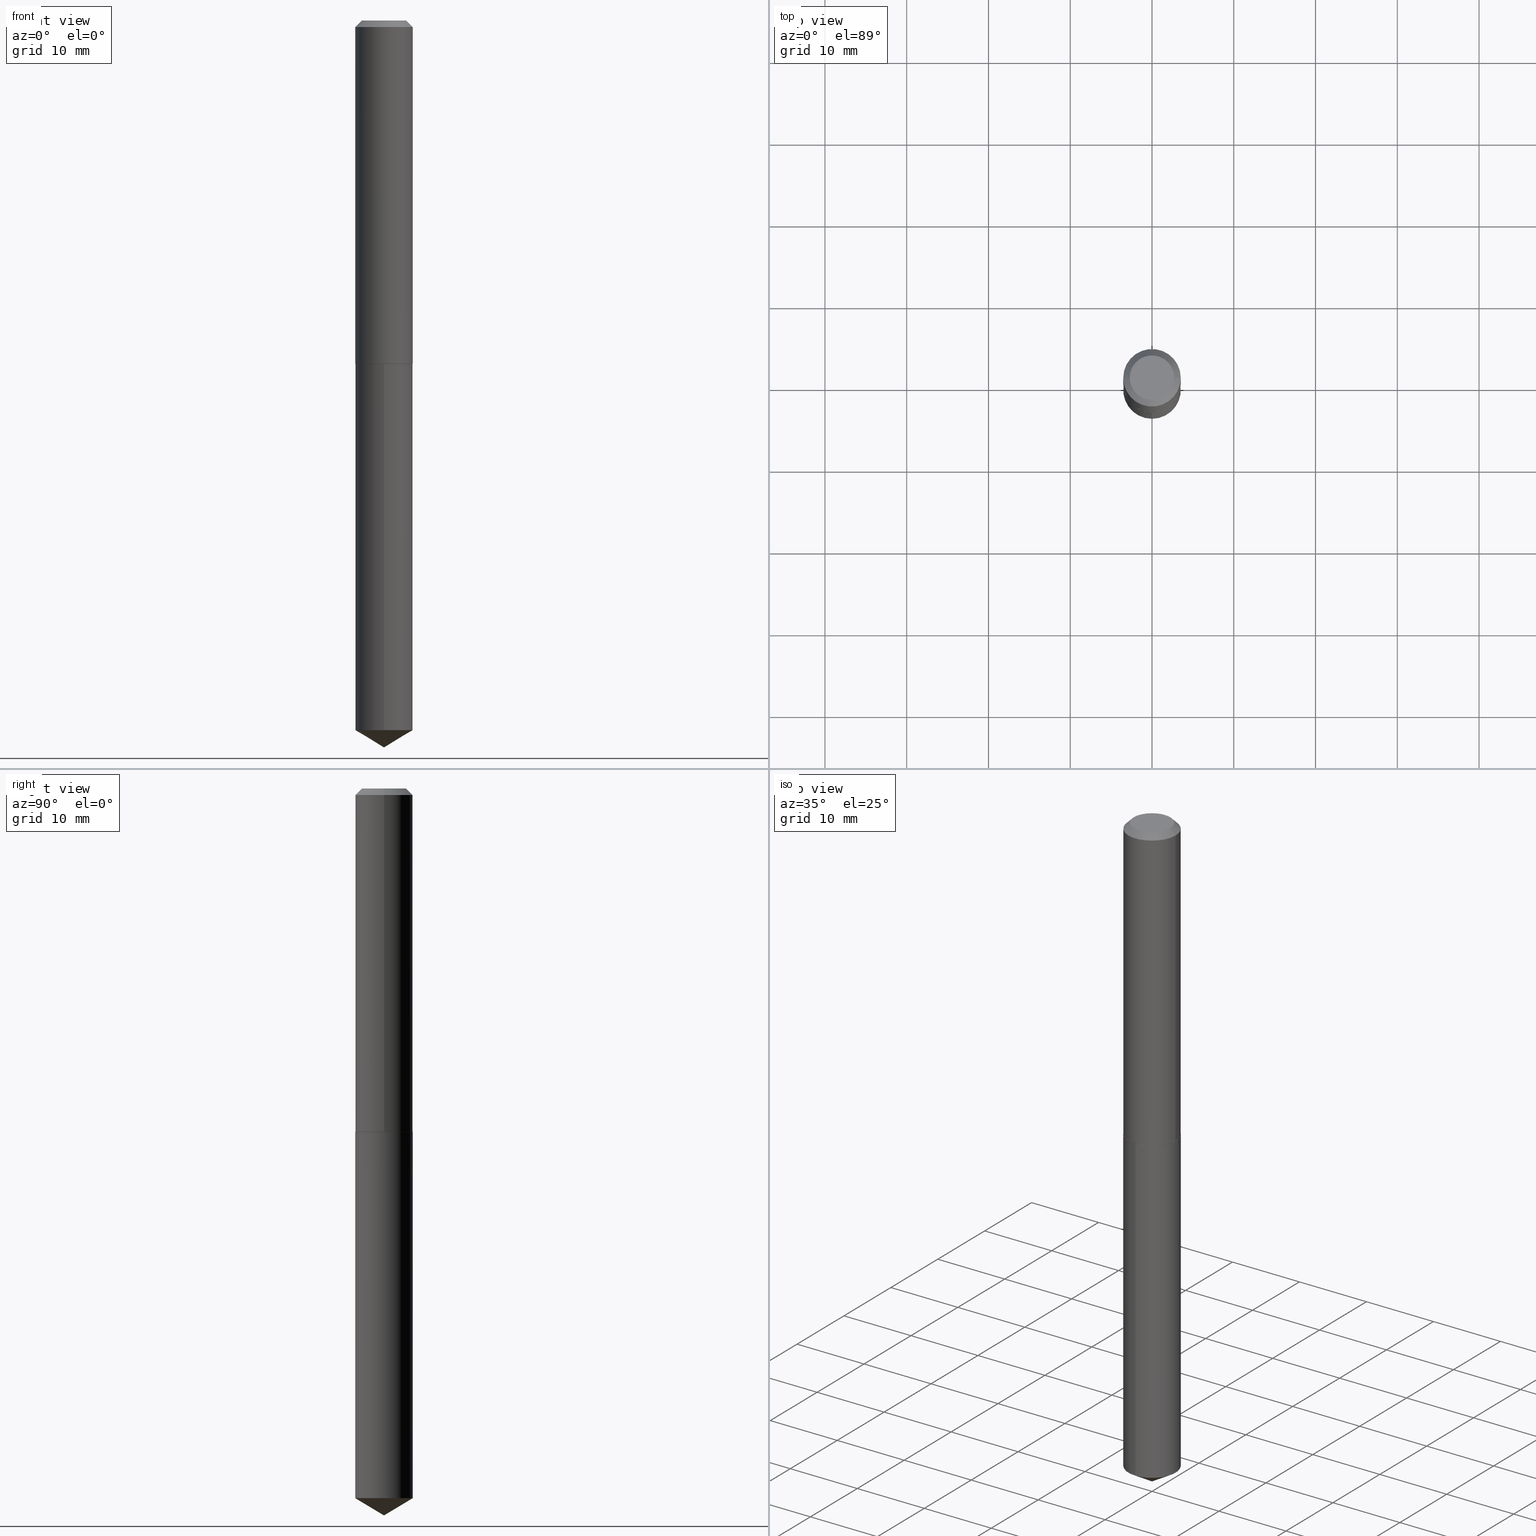
[diagram: canonical four-view strip — front | top / right | iso, engineering-drawing reading convention]
A machine part, canonical four-view strip (front | top / right | iso — engineering-drawing reading convention). The complete STEP part file that produces these views, byte-faithful:
ISO-10303-21;
HEADER;
FILE_DESCRIPTION (( 'STEP AP203' ),
    '1' );
FILE_NAME ('51210.STEP',
    '2024-04-22T18:37:37',
    ( '' ),
    ( '' ),
    'SwSTEP 2.0',
    'SolidWorks 2023',
    '' );
FILE_SCHEMA (( 'CONFIG_CONTROL_DESIGN' ));
ENDSEC;

DATA;
#1 = DIRECTION ( 'NONE',  ( -2.445468806185136597E-29, 3.491481338843145583E-15, 1.000000000000000000 ) ) ;
#2 = LENGTH_MEASURE_WITH_UNIT ( LENGTH_MEASURE( 0.02539999999999999897 ), #103 );
#3 = APPROVAL_DATE_TIME ( #68, #172 ) ;
#4 = ORIENTED_EDGE ( 'NONE', *, *, #318, .T. ) ;
#5 = DIRECTION ( 'NONE',  ( -6.982962677686265922E-15, -1.000000000000000000, 3.944906850056698013E-15 ) ) ;
#6 = EDGE_LOOP ( 'NONE', ( #372, #192, #317, #111 ) ) ;
#7 = CONICAL_SURFACE ( 'NONE', #164, 65.52281426576925583, 1.029744258676660085 ) ;
#8 = CARTESIAN_POINT ( 'NONE',  ( 4.039914467817845918E-29, -5.767927171768876561E-15, -1.652000000000000135 ) ) ;
#9 = ORIENTED_EDGE ( 'NONE', *, *, #187, .T. ) ;
#10 = EDGE_LOOP ( 'NONE', ( #229, #177, #386 ) ) ;
#11 = CONICAL_SURFACE ( 'NONE', #301, 0.1385000000000000120, 0.7853981633974449483 ) ;
#12 = DIRECTION ( 'NONE',  ( -6.982962677686265922E-15, -1.000000000000000000, 3.944906850056697224E-15 ) ) ;
#13 = DIRECTION ( 'NONE',  ( -2.445468806185136597E-29, 3.491481338843145583E-15, 1.000000000000000000 ) ) ;
#14 = ORIENTED_EDGE ( 'NONE', *, *, #287, .T. ) ;
#15 = DIRECTION ( 'NONE',  ( 1.000000000000000000, 0.000000000000000000, 0.000000000000000000 ) ) ;
#16 = CARTESIAN_POINT ( 'NONE',  ( -8.772011453141554688E-28, 1.252383416452471180E-13, 35.87007874015748143 ) ) ;
#17 = DESIGN_CONTEXT ( 'detailed design', #216, 'design' ) ;
#18 = LINE ( 'NONE', #178, #219 ) ;
#19 = ORIENTED_EDGE ( 'NONE', *, *, #311, .T. ) ;
#20 = FACE_OUTER_BOUND ( 'NONE', #6, .T. ) ;
#21 = EDGE_CURVE ( 'NONE', #305, #132, #368, .T. ) ;
#22 = ADVANCED_BREP_SHAPE_REPRESENTATION ( '51210', ( #328, #335, #251 ), #123 ) ;
#23 = LINE ( 'NONE', #388, #85 ) ;
#24 = CC_DESIGN_PERSON_AND_ORGANIZATION_ASSIGNMENT ( #347, #252, ( #116 ) ) ;
#25 = FACE_OUTER_BOUND ( 'NONE', #382, .T. ) ;
#26 = VECTOR ( 'NONE', #267, 39.37007874015748143 ) ;
#27 = UNCERTAINTY_MEASURE_WITH_UNIT (LENGTH_MEASURE( 1.000000000000000082E-05 ), #193, 'distance_accuracy_value', 'NONE');
#28 = LOCAL_TIME ( 14, 37, 37.00000000000000000, #293 ) ;
#29 = ADVANCED_FACE ( 'NONE', ( #74 ), #349, .F. ) ;
#30 = LINE ( 'NONE', #58, #214 ) ;
#31 = CONICAL_SURFACE ( 'NONE', #189, 0.1385000000000002063, 0.7853981633973459164 ) ;
#32 = AXIS2_PLACEMENT_3D ( 'NONE', #256, #140, #43 ) ;
#33 = DIRECTION ( 'NONE',  ( -0.7071067811864750752, 7.493145998870092258E-15, 0.7071067811866199593 ) ) ;
#34 = APPROVAL_DATE_TIME ( #54, #233 ) ;
#35 = ORIENTED_EDGE ( 'NONE', *, *, #62, .T. ) ;
#36 = DIRECTION ( 'NONE',  ( -2.445468806185136597E-29, 3.491481338843145583E-15, 1.000000000000000000 ) ) ;
#37 = APPROVAL_STATUS ( 'not_yet_approved' ) ;
#38 = ORIENTED_EDGE ( 'NONE', *, *, #381, .F. ) ;
#39 = ORIENTED_EDGE ( 'NONE', *, *, #139, .T. ) ;
#40 = VERTEX_POINT ( 'NONE', #106 ) ;
#41 = CARTESIAN_POINT ( 'NONE',  ( -9.671403308594642649E-16, -0.1385000000000119469, -3.416780804264683002 ) ) ;
#42 = CIRCLE ( 'NONE', #129, 0.1384999999999999842 ) ;
#43 = DIRECTION ( 'NONE',  ( 1.000000000000000000, -6.982962677686267499E-15, 0.000000000000000000 ) ) ;
#44 = ORIENTED_EDGE ( 'NONE', *, *, #303, .T. ) ;
#45 = MECHANICAL_CONTEXT ( 'NONE', #199, 'mechanical' ) ;
#46 = FACE_OUTER_BOUND ( 'NONE', #10, .T. ) ;
#47 = AXIS2_PLACEMENT_3D ( 'NONE', #16, #379, #82 ) ;
#48 = DIRECTION ( 'NONE',  ( -6.982962677686265922E-15, -1.000000000000000000, 3.944906850056697224E-15 ) ) ;
#49 = AXIS2_PLACEMENT_3D ( 'NONE', #125, #235, #150 ) ;
#50 = PERSON_AND_ORGANIZATION ( #260, #88 ) ;
#51 = CARTESIAN_POINT ( 'NONE',  ( -0.1380000000000004001, -4.784728969245825444E-15, -1.652000000000000135 ) ) ;
#52 = APPROVAL ( #322, 'UNSPECIFIED' ) ;
#53 = FACE_OUTER_BOUND ( 'NONE', #341, .T. ) ;
#54 = DATE_AND_TIME ( #365, #300 ) ;
#55 = DIRECTION ( 'NONE',  ( 1.000000000000000000, -6.982962677686265922E-15, 4.876176775795935793E-29 ) ) ;
#56 = LOCAL_TIME ( 14, 37, 37.00000000000000000, #334 ) ;
#57 = EDGE_CURVE ( 'NONE', #354, #83, #373, .T. ) ;
#58 = CARTESIAN_POINT ( 'NONE',  ( 0.1385000000000002063, -6.733321761959005111E-15, -1.651500000000000190 ) ) ;
#59 =( NAMED_UNIT ( * ) PLANE_ANGLE_UNIT ( ) SI_UNIT ( $, .RADIAN. ) );
#60 = PRODUCT_DEFINITION ( 'UNKNOWN', '', #369, #17 ) ;
#61 = FACE_OUTER_BOUND ( 'NONE', #105, .T. ) ;
#62 = EDGE_CURVE ( 'NONE', #198, #195, #244, .T. ) ;
#63 = AXIS2_PLACEMENT_3D ( 'NONE', #8, #138, #346 ) ;
#64 = AXIS2_PLACEMENT_3D ( 'NONE', #333, #302, #278 ) ;
#65 = ORIENTED_EDGE ( 'NONE', *, *, #318, .F. ) ;
#66 = PRODUCT ( '51210', '51210', '', ( #45 ) ) ;
#67 = CARTESIAN_POINT ( 'NONE',  ( -0.1385000000000002063, -4.782079742071715820E-15, -1.651500000000000190 ) ) ;
#68 = DATE_AND_TIME ( #304, #28 ) ;
#69 = CC_DESIGN_PERSON_AND_ORGANIZATION_ASSIGNMENT ( #167, #258, ( #369 ) ) ;
#70 = CARTESIAN_POINT ( 'NONE',  ( 0.000000000000000000, 0.000000000000000000, 0.000000000000000000 ) ) ;
#71 = VERTEX_POINT ( 'NONE', #41 ) ;
#72 = CIRCLE ( 'NONE', #289, 0.1384999999999999842 ) ;
#73 = ORIENTED_EDGE ( 'NONE', *, *, #62, .F. ) ;
#74 = FACE_OUTER_BOUND ( 'NONE', #281, .T. ) ;
#75 = DIRECTION ( 'NONE',  ( 1.000000000000000000, -6.982962677686269866E-15, 0.000000000000000000 ) ) ;
#76 = SECURITY_CLASSIFICATION_LEVEL ( 'unclassified' ) ;
#77 = CARTESIAN_POINT ( 'NONE',  ( -7.487088864773313307E-48, 1.068957861474242895E-33, 3.061616997868381535E-19 ) ) ;
#78 = EDGE_CURVE ( 'NONE', #132, #305, #115, .T. ) ;
#79 = EDGE_LOOP ( 'NONE', ( #73, #148 ) ) ;
#80 = AXIS2_PLACEMENT_3D ( 'NONE', #337, #1, #92 ) ;
#81 = DIRECTION ( 'NONE',  ( -2.445494281771454949E-29, 3.491444856353557226E-15, 1.000000000000000000 ) ) ;
#82 = DIRECTION ( 'NONE',  ( -6.982962677686267499E-15, -1.000000000000000000, 3.468864327941550432E-15 ) ) ;
#83 = VERTEX_POINT ( 'NONE', #143 ) ;
#84 = COORDINATED_UNIVERSAL_TIME_OFFSET ( 5, 0, .BEHIND. ) ;
#85 = VECTOR ( 'NONE', #118, 39.37007874015748143 ) ;
#86 = CC_DESIGN_APPROVAL ( #172, ( #369 ) ) ;
#87 = DIRECTION ( 'NONE',  ( 6.090539988449798946E-15, 0.8571673007021168855, 0.5150380749100462729 ) ) ;
#88 = ORGANIZATION ( 'UNSPECIFIED', 'UNSPECIFIED', '' ) ;
#89 = CARTESIAN_POINT ( 'NONE',  ( -8.772011453141554688E-28, 1.252383416452471180E-13, 35.87007874015748143 ) ) ;
#90 = DIRECTION ( 'NONE',  ( -1.000000000000000000, 6.982962677686267499E-15, 0.000000000000000000 ) ) ;
#91 = EDGE_CURVE ( 'NONE', #175, #354, #261, .T. ) ;
#92 = DIRECTION ( 'NONE',  ( 1.000000000000000000, -6.982962677686267499E-15, 4.876176775795935793E-29 ) ) ;
#93 = AXIS2_PLACEMENT_3D ( 'NONE', #359, #81, #48 ) ;
#94 = AXIS2_PLACEMENT_3D ( 'NONE', #319, #288, #180 ) ;
#95 = CYLINDRICAL_SURFACE ( 'NONE', #237, 0.1385000000000000953 ) ;
#96 = EDGE_CURVE ( 'NONE', #279, #269, #134, .T. ) ;
#97 = DIRECTION ( 'NONE',  ( -2.445468806185136597E-29, 3.491481338843145583E-15, 1.000000000000000000 ) ) ;
#98 = PRODUCT_DEFINITION_SHAPE ( 'NONE', 'NONE',  #60 ) ;
#99 =( NAMED_UNIT ( * ) SI_UNIT ( $, .STERADIAN. ) SOLID_ANGLE_UNIT ( ) );
#100 = APPROVAL_ROLE ( '' ) ;
#101 = APPROVAL_ROLE ( '' ) ;
#102 = APPROVAL_PERSON_ORGANIZATION ( #358, #52, #240 ) ;
#103 =( LENGTH_UNIT ( ) NAMED_UNIT ( * ) SI_UNIT ( $, .METRE. ) );
#104 = VERTEX_POINT ( 'NONE', #264 ) ;
#105 = EDGE_LOOP ( 'NONE', ( #377, #254, #345, #282 ) ) ;
#106 = CARTESIAN_POINT ( 'NONE',  ( 9.841016890278222647E-16, 0.1384999999999880771, -3.416780804264684335 ) ) ;
#107 = VECTOR ( 'NONE', #131, 39.37007874015748143 ) ;
#108 = ORIENTED_EDGE ( 'NONE', *, *, #311, .F. ) ;
#109 = EDGE_CURVE ( 'NONE', #40, #132, #124, .T. ) ;
#110 = DIRECTION ( 'NONE',  ( -2.445468806185136877E-29, 3.491481338843145188E-15, 1.000000000000000000 ) ) ;
#111 = ORIENTED_EDGE ( 'NONE', *, *, #139, .F. ) ;
#112 = DIRECTION ( 'NONE',  ( -6.982962677686265922E-15, -1.000000000000000000, 3.944906850056697224E-15 ) ) ;
#113 = EDGE_CURVE ( 'NONE', #195, #198, #378, .T. ) ;
#114 = ORIENTED_EDGE ( 'NONE', *, *, #194, .F. ) ;
#115 = CIRCLE ( 'NONE', #362, 0.1385000000000000120 ) ;
#116 = SECURITY_CLASSIFICATION ( '', '', #76 ) ;
#117 = DIRECTION ( 'NONE',  ( -2.445468806185136597E-29, 3.491481338843145583E-15, 1.000000000000000000 ) ) ;
#118 = DIRECTION ( 'NONE',  ( -0.7071067811865451302, 2.468850131082231817E-15, -0.7071067811865499042 ) ) ;
#119 = ORIENTED_EDGE ( 'NONE', *, *, #168, .T. ) ;
#120 = DIRECTION ( 'NONE',  ( -2.445494281771454949E-29, 3.491444856353557226E-15, 1.000000000000000000 ) ) ;
#121 = VERTEX_POINT ( 'NONE', #352 ) ;
#122 = VECTOR ( 'NONE', #324, 39.37007874015748143 ) ;
#123 =( GEOMETRIC_REPRESENTATION_CONTEXT ( 3 ) GLOBAL_UNCERTAINTY_ASSIGNED_CONTEXT ( ( #27 ) ) GLOBAL_UNIT_ASSIGNED_CONTEXT ( ( #193, #59, #99 ) ) REPRESENTATION_CONTEXT ( 'NONE', 'WORKASPACE' ) );
#124 = LINE ( 'NONE', #383, #26 ) ;
#125 = CARTESIAN_POINT ( 'NONE',  ( 4.038691733414753677E-29, -5.766181431099455846E-15, -1.651500000000000190 ) ) ;
#126 = FACE_OUTER_BOUND ( 'NONE', #227, .T. ) ;
#127 = CC_DESIGN_PERSON_AND_ORGANIZATION_ASSIGNMENT ( #179, #151, ( #369 ) ) ;
#128 = VECTOR ( 'NONE', #272, 39.37007874015748143 ) ;
#129 = AXIS2_PLACEMENT_3D ( 'NONE', #154, #276, #5 ) ;
#130 = DIRECTION ( 'NONE',  ( 2.445468806185136597E-29, -3.491481338843145583E-15, -1.000000000000000000 ) ) ;
#131 = DIRECTION ( 'NONE',  ( -2.445468806185136877E-29, 3.491481338843145188E-15, 1.000000000000000000 ) ) ;
#132 = VERTEX_POINT ( 'NONE', #268 ) ;
#133 = PLANE ( 'NONE',  #64 ) ;
#134 = CIRCLE ( 'NONE', #163, 0.1072499999999999981 ) ;
#135 = CC_DESIGN_APPROVAL ( #52, ( #60 ) ) ;
#136 = ORIENTED_EDGE ( 'NONE', *, *, #204, .F. ) ;
#137 = ORIENTED_EDGE ( 'NONE', *, *, #96, .F. ) ;
#138 = DIRECTION ( 'NONE',  ( 2.445494281771454949E-29, -3.491444856353556832E-15, -1.000000000000000000 ) ) ;
#139 = EDGE_CURVE ( 'NONE', #279, #354, #23, .T. ) ;
#140 = DIRECTION ( 'NONE',  ( -2.445468806185136597E-29, 3.491481338843145583E-15, 1.000000000000000000 ) ) ;
#141 = CONICAL_SURFACE ( 'NONE', #94, 0.1385000000000002063, 0.7853981633973459164 ) ;
#142 = EDGE_LOOP ( 'NONE', ( #19, #313, #220, #308 ) ) ;
#143 = CARTESIAN_POINT ( 'NONE',  ( 0.1385000000000000120, -1.076249122698396985E-15, -0.03125000000000021511 ) ) ;
#144 = APPLICATION_PROTOCOL_DEFINITION ( 'international standard', 'config_control_design', 1994, #199 ) ;
#145 = LINE ( 'NONE', #292, #128 ) ;
#146 = LOCAL_TIME ( 14, 37, 37.00000000000000000, #84 ) ;
#147 = LINE ( 'NONE', #353, #122 ) ;
#148 = ORIENTED_EDGE ( 'NONE', *, *, #113, .F. ) ;
#149 = CARTESIAN_POINT ( 'NONE',  ( 7.642090019328604414E-31, -1.091087918388490513E-16, -0.03125000000000021511 ) ) ;
#150 = DIRECTION ( 'NONE',  ( 1.000000000000000000, -6.982962677686269866E-15, 0.000000000000000000 ) ) ;
#151 = PERSON_AND_ORGANIZATION_ROLE ( 'creator' ) ;
#152 = VECTOR ( 'NONE', #33, 39.37007874015748143 ) ;
#153 = DIRECTION ( 'NONE',  ( 1.000000000000000000, -6.982962677686269866E-15, 0.000000000000000000 ) ) ;
#154 = CARTESIAN_POINT ( 'NONE',  ( 8.355675833227158781E-29, -1.192956203341030028E-14, -3.416780804264683891 ) ) ;
#155 = DIRECTION ( 'NONE',  ( -1.000000000000000000, 6.982962677686267499E-15, 0.000000000000000000 ) ) ;
#156 = DATE_TIME_ROLE ( 'classification_date' ) ;
#157 = DIRECTION ( 'NONE',  ( 1.000000000000000000, -6.982962677686267499E-15, 0.000000000000000000 ) ) ;
#158 = AXIS2_PLACEMENT_3D ( 'NONE', #330, #218, #273 ) ;
#159 = ADVANCED_FACE ( 'NONE', ( #53 ), #185, .T. ) ;
#160 = CARTESIAN_POINT ( 'NONE',  ( -0.1072499999999999981, 8.034771431012755151E-16, 3.061616997814100162E-19 ) ) ;
#161 = DIRECTION ( 'NONE',  ( 1.000000000000000000, -6.982962677686269866E-15, 0.000000000000000000 ) ) ;
#162 = ADVANCED_FACE ( 'NONE', ( #25 ), #31, .T. ) ;
#163 = AXIS2_PLACEMENT_3D ( 'NONE', #77, #262, #206 ) ;
#164 = AXIS2_PLACEMENT_3D ( 'NONE', #89, #360, #355 ) ;
#165 = ORIENTED_EDGE ( 'NONE', *, *, #109, .T. ) ;
#166 = CARTESIAN_POINT ( 'NONE',  ( 4.039914467817845918E-29, -5.767927171768876561E-15, -1.652000000000000135 ) ) ;
#167 = PERSON_AND_ORGANIZATION ( #260, #88 ) ;
#168 = EDGE_CURVE ( 'NONE', #71, #40, #72, .T. ) ;
#169 = ADVANCED_FACE ( 'NONE', ( #294 ), #255, .T. ) ;
#170 = DIRECTION ( 'NONE',  ( -2.445494281771454949E-29, 3.491444856353557226E-15, 1.000000000000000000 ) ) ;
#171 = VECTOR ( 'NONE', #299, 39.37007874015748143 ) ;
#172 = APPROVAL ( #37, 'UNSPECIFIED' ) ;
#173 = ORIENTED_EDGE ( 'NONE', *, *, #187, .F. ) ;
#174 = ORIENTED_EDGE ( 'NONE', *, *, #96, .T. ) ;
#175 = VERTEX_POINT ( 'NONE', #241 ) ;
#176 = FACE_OUTER_BOUND ( 'NONE', #371, .T. ) ;
#177 = ORIENTED_EDGE ( 'NONE', *, *, #381, .T. ) ;
#178 = CARTESIAN_POINT ( 'NONE',  ( 8.559230724283362089E-29, -1.222005699723744990E-14, -3.500000000000000000 ) ) ;
#179 = PERSON_AND_ORGANIZATION ( #260, #88 ) ;
#180 = DIRECTION ( 'NONE',  ( 1.000000000000000000, -6.982962677686269866E-15, 0.000000000000000000 ) ) ;
#181 = PERSON_AND_ORGANIZATION ( #260, #88 ) ;
#182 = CARTESIAN_POINT ( 'NONE',  ( 4.038691733414753677E-29, -5.766181431099455846E-15, -1.651500000000000190 ) ) ;
#183 = CLOSED_SHELL ( 'NONE', ( #266, #296, #226, #200, #162, #343, #329, #374 ) ) ;
#184 = CC_DESIGN_APPROVAL ( #233, ( #116 ) ) ;
#185 = CYLINDRICAL_SURFACE ( 'NONE', #93, 0.1385000000000000120 ) ;
#186 = DIRECTION ( 'NONE',  ( -2.445468806185136597E-29, 3.491481338843145583E-15, 1.000000000000000000 ) ) ;
#187 = EDGE_CURVE ( 'NONE', #71, #305, #147, .T. ) ;
#188 = CYLINDRICAL_SURFACE ( 'NONE', #80, 0.1385000000000000953 ) ;
#189 = AXIS2_PLACEMENT_3D ( 'NONE', #182, #385, #153 ) ;
#190 = CARTESIAN_POINT ( 'NONE',  ( -9.671403308595074551E-16, -0.1385000000000057852, -1.651999999999999469 ) ) ;
#191 = PERSON_AND_ORGANIZATION_ROLE ( 'creator' ) ;
#192 = ORIENTED_EDGE ( 'NONE', *, *, #194, .T. ) ;
#193 =( CONVERSION_BASED_UNIT ( 'INCH', #2 ) LENGTH_UNIT ( ) NAMED_UNIT ( #338 ) );
#194 = EDGE_CURVE ( 'NONE', #269, #83, #145, .T. ) ;
#195 = VERTEX_POINT ( 'NONE', #51 ) ;
#196 = CC_DESIGN_PERSON_AND_ORGANIZATION_ASSIGNMENT ( #236, #211, ( #66 ) ) ;
#197 = ORIENTED_EDGE ( 'NONE', *, *, #113, .T. ) ;
#198 = VERTEX_POINT ( 'NONE', #210 ) ;
#199 = APPLICATION_CONTEXT ( 'configuration controlled 3d designs of mechanical parts and assemblies' ) ;
#200 = ADVANCED_FACE ( 'NONE', ( #389 ), #205, .F. ) ;
#201 = CALENDAR_DATE ( 2024, 22, 4 ) ;
#202 = ORIENTED_EDGE ( 'NONE', *, *, #78, .T. ) ;
#203 = APPROVAL_PERSON_ORGANIZATION ( #50, #172, #101 ) ;
#204 = EDGE_CURVE ( 'NONE', #175, #104, #259, .T. ) ;
#205 = PLANE ( 'NONE',  #224 ) ;
#206 = DIRECTION ( 'NONE',  ( 1.000000000000000000, -6.982962677686266711E-15, 4.876199892921952683E-29 ) ) ;
#207 = ADVANCED_FACE ( 'NONE', ( #46 ), #7, .T. ) ;
#208 = ORIENTED_EDGE ( 'NONE', *, *, #387, .F. ) ;
#209 = CARTESIAN_POINT ( 'NONE',  ( 4.039914467817845918E-29, -5.767927171768876561E-15, -1.652000000000000135 ) ) ;
#210 = CARTESIAN_POINT ( 'NONE',  ( 0.1380000000000004001, -6.731576021289585185E-15, -1.652000000000000135 ) ) ;
#211 = PERSON_AND_ORGANIZATION_ROLE ( 'design_owner' ) ;
#212 = CARTESIAN_POINT ( 'NONE',  ( 0.1072499999999999981, -8.975380873956014926E-16, 3.061616997925946618E-19 ) ) ;
#213 = AXIS2_PLACEMENT_3D ( 'NONE', #209, #117, #232 ) ;
#214 = VECTOR ( 'NONE', #245, 39.37007874015748143 ) ;
#215 = CYLINDRICAL_SURFACE ( 'NONE', #158, 0.1385000000000000120 ) ;
#216 = APPLICATION_CONTEXT ( 'configuration controlled 3d designs of mechanical parts and assemblies' ) ;
#217 = FACE_OUTER_BOUND ( 'NONE', #263, .T. ) ;
#218 = DIRECTION ( 'NONE',  ( -2.445494281771454949E-29, 3.491444856353557226E-15, 1.000000000000000000 ) ) ;
#219 = VECTOR ( 'NONE', #87, 39.37007874015748854 ) ;
#220 = ORIENTED_EDGE ( 'NONE', *, *, #275, .F. ) ;
#221 = CARTESIAN_POINT ( 'NONE',  ( -7.487088864773313307E-48, 1.068957861474242895E-33, 3.061616997868381535E-19 ) ) ;
#222 = CC_DESIGN_DATE_AND_TIME_ASSIGNMENT ( #312, #156, ( #116 ) ) ;
#223 = AXIS2_PLACEMENT_3D ( 'NONE', #285, #13, #75 ) ;
#224 = AXIS2_PLACEMENT_3D ( 'NONE', #234, #291, #55 ) ;
#225 = ORIENTED_EDGE ( 'NONE', *, *, #387, .T. ) ;
#226 = ADVANCED_FACE ( 'NONE', ( #176 ), #141, .T. ) ;
#227 = EDGE_LOOP ( 'NONE', ( #114, #137, #39, #348 ) ) ;
#228 = PRODUCT_RELATED_PRODUCT_CATEGORY ( 'detail', '', ( #66 ) ) ;
#229 = ORIENTED_EDGE ( 'NONE', *, *, #230, .F. ) ;
#230 = EDGE_CURVE ( 'NONE', #121, #40, #18, .T. ) ;
#231 = AXIS2_PLACEMENT_3D ( 'NONE', #221, #36, #327 ) ;
#232 = DIRECTION ( 'NONE',  ( 1.000000000000000000, -6.982962677686269866E-15, 0.000000000000000000 ) ) ;
#233 = APPROVAL ( #274, 'UNSPECIFIED' ) ;
#234 = CARTESIAN_POINT ( 'NONE',  ( 4.039914467817845918E-29, -5.767927171768876561E-15, -1.652000000000000135 ) ) ;
#235 = DIRECTION ( 'NONE',  ( -2.445468806185136597E-29, 3.491481338843145583E-15, 1.000000000000000000 ) ) ;
#236 = PERSON_AND_ORGANIZATION ( #260, #88 ) ;
#237 = AXIS2_PLACEMENT_3D ( 'NONE', #70, #186, #297 ) ;
#238 = CARTESIAN_POINT ( 'NONE',  ( 7.642090019328604414E-31, -1.091087918388490513E-16, -0.03125000000000021511 ) ) ;
#239 = CC_DESIGN_DATE_AND_TIME_ASSIGNMENT ( #331, #249, ( #60 ) ) ;
#240 = APPROVAL_ROLE ( '' ) ;
#241 = CARTESIAN_POINT ( 'NONE',  ( -0.1385000000000002063, -4.782079742071715820E-15, -1.651500000000000190 ) ) ;
#242 = LINE ( 'NONE', #247, #107 ) ;
#243 = PERSON_AND_ORGANIZATION ( #260, #88 ) ;
#244 = CIRCLE ( 'NONE', #223, 0.1380000000000004001 ) ;
#245 = DIRECTION ( 'NONE',  ( 0.7071067811864750752, -2.468850131081498176E-15, 0.7071067811866199593 ) ) ;
#246 = CC_DESIGN_PERSON_AND_ORGANIZATION_ASSIGNMENT ( #181, #191, ( #60 ) ) ;
#247 = CARTESIAN_POINT ( 'NONE',  ( 0.1385000000000000953, -9.671403308595486731E-16, 6.753504834477375725E-30 ) ) ;
#248 = APPLICATION_PROTOCOL_DEFINITION ( 'international standard', 'config_control_design', 1994, #216 ) ;
#249 = DATE_TIME_ROLE ( 'creation_date' ) ;
#250 = CARTESIAN_POINT ( 'NONE',  ( 8.559145814862894617E-29, -1.222017753538304813E-14, -3.500000000000000000 ) ) ;
#251 = AXIS2_PLACEMENT_3D ( 'NONE', #314, #286, #15 ) ;
#252 = PERSON_AND_ORGANIZATION_ROLE ( 'classification_officer' ) ;
#253 = ORIENTED_EDGE ( 'NONE', *, *, #230, .T. ) ;
#254 = ORIENTED_EDGE ( 'NONE', *, *, #204, .T. ) ;
#255 = CONICAL_SURFACE ( 'NONE', #47, 65.52281426576925583, 1.029744258676660085 ) ;
#256 = CARTESIAN_POINT ( 'NONE',  ( 7.642090019328604414E-31, -1.091087918388490513E-16, -0.03125000000000021511 ) ) ;
#257 = VECTOR ( 'NONE', #110, 39.37007874015748143 ) ;
#258 = PERSON_AND_ORGANIZATION_ROLE ( 'design_supplier' ) ;
#259 = CIRCLE ( 'NONE', #49, 0.1385000000000002063 ) ;
#260 = PERSON ( 'UNSPECIFIED', 'UNSPECIFIED', 'UNSPECIFIED', ('UNSPECIFIED'), ('UNSPECIFIED'), ('UNSPECIFIED') ) ;
#261 = LINE ( 'NONE', #375, #257 ) ;
#262 = DIRECTION ( 'NONE',  ( -2.445468806185136597E-29, 3.491481338843145583E-15, 1.000000000000000000 ) ) ;
#263 = EDGE_LOOP ( 'NONE', ( #174, #44 ) ) ;
#264 = CARTESIAN_POINT ( 'NONE',  ( 0.1385000000000002063, -6.733321761959005111E-15, -1.651500000000000190 ) ) ;
#265 = LOCAL_TIME ( 14, 37, 37.00000000000000000, #339 ) ;
#266 = ADVANCED_FACE ( 'NONE', ( #20 ), #357, .T. ) ;
#267 = DIRECTION ( 'NONE',  ( -2.445494281771454949E-29, 3.491444856353556832E-15, 1.000000000000000000 ) ) ;
#268 = CARTESIAN_POINT ( 'NONE',  ( 9.841016890278224619E-16, 0.1384999999999942388, -1.652000000000000579 ) ) ;
#269 = VERTEX_POINT ( 'NONE', #212 ) ;
#270 = DIRECTION ( 'NONE',  ( 2.445468806185136597E-29, -3.491481338843145583E-15, -1.000000000000000000 ) ) ;
#271 = CIRCLE ( 'NONE', #332, 0.1385000000000002063 ) ;
#272 = DIRECTION ( 'NONE',  ( 0.7071067811865451302, -7.319954787623248157E-15, -0.7071067811865499042 ) ) ;
#273 = DIRECTION ( 'NONE',  ( -6.982962677686265922E-15, -1.000000000000000000, 3.944906850056697224E-15 ) ) ;
#274 = APPROVAL_STATUS ( 'not_yet_approved' ) ;
#275 = EDGE_CURVE ( 'NONE', #83, #354, #380, .T. ) ;
#276 = DIRECTION ( 'NONE',  ( -2.445494281771454949E-29, 3.491444856353557226E-15, 1.000000000000000000 ) ) ;
#277 = SHAPE_DEFINITION_REPRESENTATION ( #98, #22 ) ;
#278 = DIRECTION ( 'NONE',  ( -1.000000000000000000, 6.982962677686265922E-15, -4.876176775795935793E-29 ) ) ;
#279 = VERTEX_POINT ( 'NONE', #160 ) ;
#280 = ADVANCED_FACE ( 'NONE', ( #306 ), #215, .T. ) ;
#281 = EDGE_LOOP ( 'NONE', ( #309, #202 ) ) ;
#282 = ORIENTED_EDGE ( 'NONE', *, *, #57, .F. ) ;
#283 = AXIS2_PLACEMENT_3D ( 'NONE', #166, #310, #112 ) ;
#284 = CARTESIAN_POINT ( 'NONE',  ( 4.039914467817845918E-29, -5.767927171768876561E-15, -1.652000000000000135 ) ) ;
#285 = CARTESIAN_POINT ( 'NONE',  ( 4.039914467817845918E-29, -5.767927171768876561E-15, -1.652000000000000135 ) ) ;
#286 = DIRECTION ( 'NONE',  ( 0.000000000000000000, 0.000000000000000000, 1.000000000000000000 ) ) ;
#287 = EDGE_CURVE ( 'NONE', #40, #71, #42, .T. ) ;
#288 = DIRECTION ( 'NONE',  ( -2.445468806185136597E-29, 3.491481338843145583E-15, 1.000000000000000000 ) ) ;
#289 = AXIS2_PLACEMENT_3D ( 'NONE', #321, #120, #316 ) ;
#290 = EDGE_LOOP ( 'NONE', ( #38, #253, #336 ) ) ;
#291 = DIRECTION ( 'NONE',  ( -2.438088387897960049E-29, 3.491481338843145188E-15, 1.000000000000000000 ) ) ;
#292 = CARTESIAN_POINT ( 'NONE',  ( 0.1385000000000000120, -1.059287764530206224E-15, -0.03125000000000021511 ) ) ;
#293 = COORDINATED_UNIVERSAL_TIME_OFFSET ( 5, 0, .BEHIND. ) ;
#294 = FACE_OUTER_BOUND ( 'NONE', #290, .T. ) ;
#295 = APPROVAL_PERSON_ORGANIZATION ( #243, #233, #100 ) ;
#296 = ADVANCED_FACE ( 'NONE', ( #390 ), #188, .T. ) ;
#297 = DIRECTION ( 'NONE',  ( 1.000000000000000000, -6.982962677686267499E-15, 4.876176775795935793E-29 ) ) ;
#298 = LINE ( 'NONE', #250, #171 ) ;
#299 = DIRECTION ( 'NONE',  ( -5.985567269335964156E-15, -0.8571673007021134438, 0.5150380749100523792 ) ) ;
#300 = LOCAL_TIME ( 14, 37, 37.00000000000000000, #364 ) ;
#301 = AXIS2_PLACEMENT_3D ( 'NONE', #363, #130, #155 ) ;
#302 = DIRECTION ( 'NONE',  ( 2.438088387897960049E-29, -3.491481338843145188E-15, -1.000000000000000000 ) ) ;
#303 = EDGE_CURVE ( 'NONE', #269, #279, #350, .T. ) ;
#304 = CALENDAR_DATE ( 2024, 22, 4 ) ;
#305 = VERTEX_POINT ( 'NONE', #190 ) ;
#306 = FACE_OUTER_BOUND ( 'NONE', #344, .T. ) ;
#307 = DATE_AND_TIME ( #384, #146 ) ;
#308 = ORIENTED_EDGE ( 'NONE', *, *, #340, .F. ) ;
#309 = ORIENTED_EDGE ( 'NONE', *, *, #21, .T. ) ;
#310 = DIRECTION ( 'NONE',  ( -2.445494281771454949E-29, 3.491444856353557226E-15, 1.000000000000000000 ) ) ;
#311 = EDGE_CURVE ( 'NONE', #104, #175, #271, .T. ) ;
#312 = DATE_AND_TIME ( #201, #265 ) ;
#313 = ORIENTED_EDGE ( 'NONE', *, *, #91, .T. ) ;
#314 = CARTESIAN_POINT ( 'NONE',  ( 0.000000000000000000, 0.000000000000000000, 0.000000000000000000 ) ) ;
#315 = ORIENTED_EDGE ( 'NONE', *, *, #21, .F. ) ;
#316 = DIRECTION ( 'NONE',  ( -6.982962677686265922E-15, -1.000000000000000000, 3.944906850056698013E-15 ) ) ;
#317 = ORIENTED_EDGE ( 'NONE', *, *, #275, .T. ) ;
#318 = EDGE_CURVE ( 'NONE', #198, #104, #30, .T. ) ;
#319 = CARTESIAN_POINT ( 'NONE',  ( 4.038691733414753677E-29, -5.766181431099455846E-15, -1.651500000000000190 ) ) ;
#320 = AXIS2_PLACEMENT_3D ( 'NONE', #238, #323, #157 ) ;
#321 = CARTESIAN_POINT ( 'NONE',  ( 8.355675833227158781E-29, -1.192956203341030028E-14, -3.416780804264683891 ) ) ;
#322 = APPROVAL_STATUS ( 'not_yet_approved' ) ;
#323 = DIRECTION ( 'NONE',  ( -2.445468806185136597E-29, 3.491481338843145583E-15, 1.000000000000000000 ) ) ;
#324 = DIRECTION ( 'NONE',  ( -2.445494281771454949E-29, 3.491444856353556832E-15, 1.000000000000000000 ) ) ;
#325 = CC_DESIGN_SECURITY_CLASSIFICATION ( #116, ( #369 ) ) ;
#326 = CARTESIAN_POINT ( 'NONE',  ( 4.038691733414753677E-29, -5.766181431099455846E-15, -1.651500000000000190 ) ) ;
#327 = DIRECTION ( 'NONE',  ( 1.000000000000000000, -6.982962677686266711E-15, 4.876199892921952683E-29 ) ) ;
#328 = MANIFOLD_SOLID_BREP ( 'Body-Move/Copy2[1]', #356 ) ;
#329 = ADVANCED_FACE ( 'NONE', ( #126 ), #11, .T. ) ;
#330 = CARTESIAN_POINT ( 'NONE',  ( 4.039914467817845918E-29, -5.767927171768876561E-15, -1.652000000000000135 ) ) ;
#331 = DATE_AND_TIME ( #367, #56 ) ;
#332 = AXIS2_PLACEMENT_3D ( 'NONE', #326, #97, #161 ) ;
#333 = CARTESIAN_POINT ( 'NONE',  ( -3.743544432386656653E-48, 5.344789307371214474E-34, 1.530808498934190767E-19 ) ) ;
#334 = COORDINATED_UNIVERSAL_TIME_OFFSET ( 5, 0, .BEHIND. ) ;
#335 = MANIFOLD_SOLID_BREP ( 'Body-Move/Copy2[2]', #183 ) ;
#336 = ORIENTED_EDGE ( 'NONE', *, *, #168, .F. ) ;
#337 = CARTESIAN_POINT ( 'NONE',  ( 0.000000000000000000, 0.000000000000000000, 0.000000000000000000 ) ) ;
#338 = DIMENSIONAL_EXPONENTS ( 1.000000000000000000, 0.000000000000000000, 0.000000000000000000, 0.000000000000000000, 0.000000000000000000, 0.000000000000000000, 0.000000000000000000 ) ;
#339 = COORDINATED_UNIVERSAL_TIME_OFFSET ( 5, 0, .BEHIND. ) ;
#340 = EDGE_CURVE ( 'NONE', #104, #83, #242, .T. ) ;
#341 = EDGE_LOOP ( 'NONE', ( #119, #165, #315, #173 ) ) ;
#342 = AXIS2_PLACEMENT_3D ( 'NONE', #149, #270, #90 ) ;
#343 = ADVANCED_FACE ( 'NONE', ( #61 ), #95, .T. ) ;
#344 = EDGE_LOOP ( 'NONE', ( #376, #14, #9, #351 ) ) ;
#345 = ORIENTED_EDGE ( 'NONE', *, *, #340, .T. ) ;
#346 = DIRECTION ( 'NONE',  ( 6.982962677686265922E-15, 1.000000000000000000, -3.491444856353556832E-15 ) ) ;
#347 = PERSON_AND_ORGANIZATION ( #260, #88 ) ;
#348 = ORIENTED_EDGE ( 'NONE', *, *, #57, .T. ) ;
#349 = PLANE ( 'NONE',  #63 ) ;
#350 = CIRCLE ( 'NONE', #231, 0.1072499999999999981 ) ;
#351 = ORIENTED_EDGE ( 'NONE', *, *, #78, .F. ) ;
#352 = CARTESIAN_POINT ( 'NONE',  ( 8.559229986200092743E-29, -1.222005699723744990E-14, -3.500000000000000000 ) ) ;
#353 = CARTESIAN_POINT ( 'NONE',  ( -9.671403308595074551E-16, -0.1385000000000057852, -1.651999999999999469 ) ) ;
#354 = VERTEX_POINT ( 'NONE', #361 ) ;
#355 = DIRECTION ( 'NONE',  ( -6.982962677686267499E-15, -1.000000000000000000, 3.468864327941550432E-15 ) ) ;
#356 = CLOSED_SHELL ( 'NONE', ( #159, #169, #207, #280, #29 ) ) ;
#357 = CONICAL_SURFACE ( 'NONE', #342, 0.1385000000000000120, 0.7853981633974449483 ) ;
#358 = PERSON_AND_ORGANIZATION ( #260, #88 ) ;
#359 = CARTESIAN_POINT ( 'NONE',  ( 4.039914467817845918E-29, -5.767927171768876561E-15, -1.652000000000000135 ) ) ;
#360 = DIRECTION ( 'NONE',  ( -2.445494281771454949E-29, 3.491444856353557226E-15, 1.000000000000000000 ) ) ;
#361 = CARTESIAN_POINT ( 'NONE',  ( -0.1385000000000000120, -1.953543422441412053E-15, -0.03125000000000021511 ) ) ;
#362 = AXIS2_PLACEMENT_3D ( 'NONE', #284, #170, #12 ) ;
#363 = CARTESIAN_POINT ( 'NONE',  ( 7.642090019328604414E-31, -1.091087918388490513E-16, -0.03125000000000021511 ) ) ;
#364 = COORDINATED_UNIVERSAL_TIME_OFFSET ( 5, 0, .BEHIND. ) ;
#365 = CALENDAR_DATE ( 2024, 22, 4 ) ;
#366 = APPROVAL_DATE_TIME ( #307, #52 ) ;
#367 = CALENDAR_DATE ( 2024, 22, 4 ) ;
#368 = CIRCLE ( 'NONE', #283, 0.1385000000000000120 ) ;
#369 = PRODUCT_DEFINITION_FORMATION_WITH_SPECIFIED_SOURCE ( 'ANY', '', #66, .NOT_KNOWN. ) ;
#370 = LINE ( 'NONE', #67, #152 ) ;
#371 = EDGE_LOOP ( 'NONE', ( #35, #225, #108, #65 ) ) ;
#372 = ORIENTED_EDGE ( 'NONE', *, *, #303, .F. ) ;
#373 = CIRCLE ( 'NONE', #32, 0.1385000000000000120 ) ;
#374 = ADVANCED_FACE ( 'NONE', ( #217 ), #133, .F. ) ;
#375 = CARTESIAN_POINT ( 'NONE',  ( -0.1385000000000000953, 9.841016890277394343E-16, -6.812725100003049365E-30 ) ) ;
#376 = ORIENTED_EDGE ( 'NONE', *, *, #109, .F. ) ;
#377 = ORIENTED_EDGE ( 'NONE', *, *, #91, .F. ) ;
#378 = CIRCLE ( 'NONE', #213, 0.1380000000000004001 ) ;
#379 = DIRECTION ( 'NONE',  ( -2.445494281771454949E-29, 3.491444856353557226E-15, 1.000000000000000000 ) ) ;
#380 = CIRCLE ( 'NONE', #320, 0.1385000000000000120 ) ;
#381 = EDGE_CURVE ( 'NONE', #121, #71, #298, .T. ) ;
#382 = EDGE_LOOP ( 'NONE', ( #208, #197, #4, #136 ) ) ;
#383 = CARTESIAN_POINT ( 'NONE',  ( 9.841016890277790745E-16, 0.1384999999999942388, -1.652000000000000579 ) ) ;
#384 = CALENDAR_DATE ( 2024, 22, 4 ) ;
#385 = DIRECTION ( 'NONE',  ( -2.445468806185136597E-29, 3.491481338843145583E-15, 1.000000000000000000 ) ) ;
#386 = ORIENTED_EDGE ( 'NONE', *, *, #287, .F. ) ;
#387 = EDGE_CURVE ( 'NONE', #195, #175, #370, .T. ) ;
#388 = CARTESIAN_POINT ( 'NONE',  ( -0.1385000000000000120, 8.580315390206988822E-16, -0.03125000000000021511 ) ) ;
#389 = FACE_OUTER_BOUND ( 'NONE', #79, .T. ) ;
#390 = FACE_OUTER_BOUND ( 'NONE', #142, .T. ) ;
ENDSEC;
END-ISO-10303-21;
